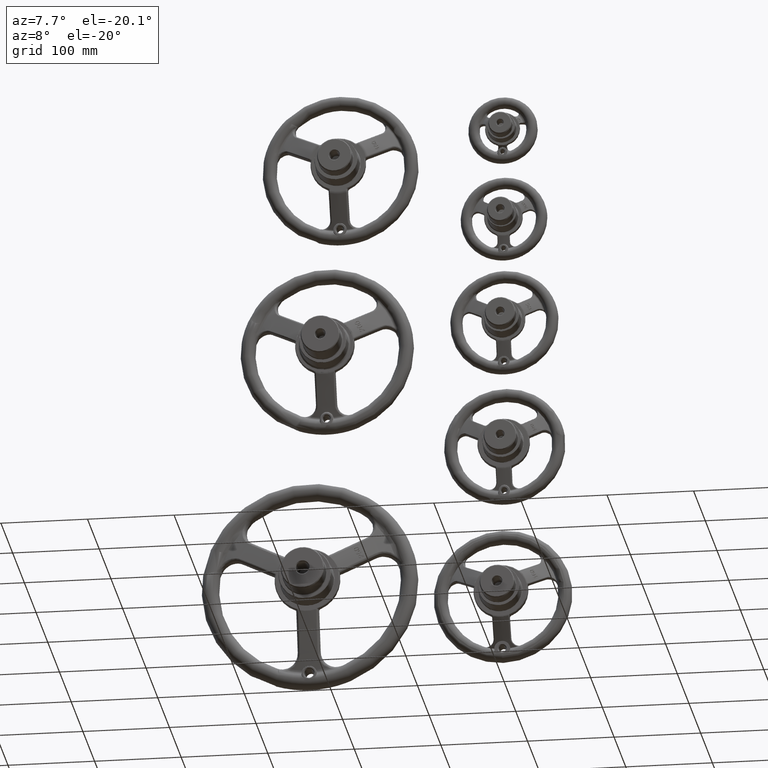
[diagram: clean part render]
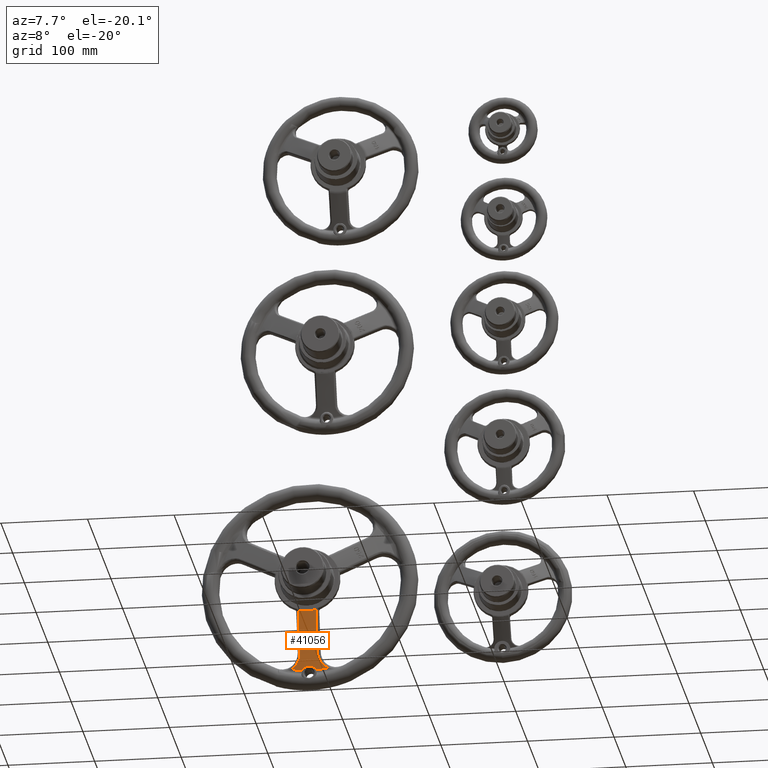
[diagram: same view with one face highlighted and labeled with its STEP entity id]
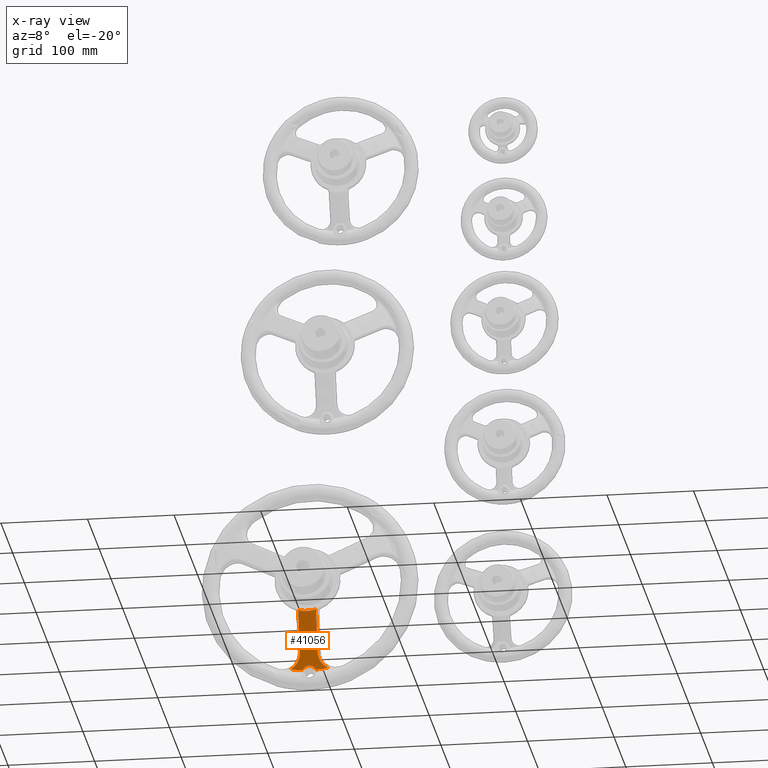
[diagram: x-ray of the same camera — body ghosted, the highlighted face saturated]
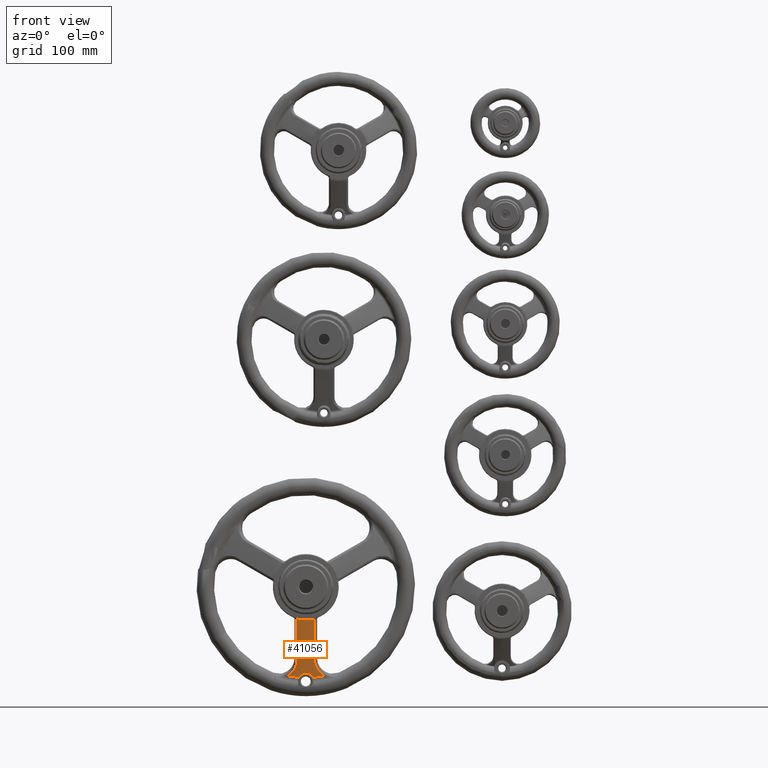
[diagram: same view with one face highlighted and labeled with its STEP entity id]
A machine part, auxiliary view. The second image highlights one B-rep face of the part: STEP entity #41056.
The next image is the same camera in x-ray: the body ghosted, the highlighted face saturated — about 0% of this face is hidden behind the body in this view.
A second angle (front view) of the same face is appended — the face is thin or edge-on in the first view.
In plain terms, the highlighted conical surface has half-angle 74.747 deg.
Its self-contained STEP definition (entity closure, byte-faithful):
#5355=CONICAL_SURFACE('',#44203,103.771854877396,1.30457974013529);
#7569=FACE_OUTER_BOUND('',#10660,.T.);
#10660=EDGE_LOOP('',(#37314,#37315,#37316,#37317,#37318,#37319,#37320,#37321));
#13751=B_SPLINE_CURVE_WITH_KNOTS('',3,(#172610,#172611,#172612,#172613,
#172614,#172615,#172616,#172617,#172618,#172619,#172620,#172621,#172622,
#172623,#172624,#172625,#172626,#172627,#172628,#172629,#172630,#172631,
#172632,#172633,#172634,#172635,#172636,#172637,#172638,#172639,#172640,
#172641,#172642,#172643,#172644,#172645,#172646,#172647,#172648,#172649,
#172650,#172651,#172652,#172653,#172654,#172655,#172656,#172657,#172658,
#172659,#172660,#172661,#172662,#172663,#172664,#172665,#172666,#172667,
#172668,#172669,#172670,#172671,#172672,#172673,#172674,#172675,#172676,
#172677,#172678,#172679,#172680,#172681,#172682,#172683,#172684,#172685,
#172686,#172687,#172688,#172689,#172690,#172691,#172692,#172693,#172694,
#172695,#172696,#172697,#172698,#172699,#172700,#172701,#172702,#172703,
#172704,#172705,#172706,#172707,#172708,#172709,#172710,#172711,#172712,
#172713,#172714,#172715,#172716,#172717,#172718,#172719,#172720,#172721,
#172722,#172723,#172724,#172725,#172726,#172727,#172728,#172729,#172730,
#172731,#172732,#172733,#172734,#172735,#172736),.UNSPECIFIED.,.F.,.F.,
(4,3,3,3,3,3,3,3,3,3,3,3,3,3,3,3,3,3,3,3,3,3,3,3,3,3,3,3,3,3,3,3,3,3,3,
3,3,3,3,3,3,3,4),(0.,0.0624999999999785,0.13284328700875,0.140624999999952,
0.142578124999951,0.143554687499951,0.144531249999951,0.148437499999952,
0.156249999999953,0.187499999999962,0.21874999999997,0.234374999999974,
0.242187499999976,0.246093749999977,0.248046874999978,0.249999999999979,
0.303834696674284,0.35937500000001,0.367187500000011,0.371093750000012,
0.373046875000013,0.374023437500012,0.375000000000011,0.468749999999983,
0.484374999999978,0.492187499999975,0.498295150706247,0.499999999999971,
0.593749999999935,0.609374999999929,0.617187499999926,0.621093749999924,
0.624999999999921,0.68718398001762,0.718749999999841,0.734374999999828,
0.742187499999821,0.746093749999818,0.748046874999816,0.749023437499816,
0.749999999999815,0.866471650403726,1.),.UNSPECIFIED.);
#13752=B_SPLINE_CURVE_WITH_KNOTS('',3,(#172802,#172803,#172804,#172805,
#172806,#172807,#172808,#172809,#172810,#172811,#172812,#172813,#172814,
#172815,#172816,#172817,#172818,#172819,#172820,#172821,#172822,#172823,
#172824,#172825,#172826,#172827,#172828,#172829,#172830,#172831,#172832,
#172833,#172834,#172835,#172836,#172837,#172838,#172839,#172840,#172841),
 .UNSPECIFIED.,.F.,.F.,(4,2,2,1,1,1,1,2,2,2,2,1,1,1,1,2,2,2,2,1,1,1,1,2,
2,4),(0.,0.0624999999999976,0.0937499999999966,0.109374999999996,0.117187499999996,
0.121093749999996,0.123046874999996,0.124511718749995,0.124999999999995,
0.187499999999979,0.218749999999971,0.234374999999968,0.242187499999966,
0.246093749999965,0.248046874999964,0.249755859374963,0.249999999999963,
0.374999999999925,0.437499999999906,0.468749999999897,0.484374999999892,
0.49218749999989,0.496093749999889,0.499755859374888,0.499999999999888,
1.),.UNSPECIFIED.);
#13753=B_SPLINE_CURVE_WITH_KNOTS('',3,(#172842,#172843,#172844,#172845,
#172846,#172847,#172848,#172849,#172850,#172851,#172852,#172853,#172854,
#172855,#172856,#172857,#172858,#172859,#172860,#172861,#172862,#172863,
#172864,#172865,#172866,#172867,#172868,#172869),.UNSPECIFIED.,.F.,.F.,
(4,2,2,2,2,2,2,2,2,2,2,2,2,4),(0.,0.125000000000001,0.187500000000001,0.218750000000001,
0.250000000000002,0.312500000000002,0.375000000000002,0.500000000000002,
0.562500000000002,0.625000000000002,0.687500000000002,0.750000000000002,
0.875000000000001,1.),.UNSPECIFIED.);
#13754=B_SPLINE_CURVE_WITH_KNOTS('',3,(#172871,#172872,#172873,#172874,
#172875,#172876,#172877,#172878,#172879,#172880,#172881,#172882,#172883,
#172884,#172885,#172886,#172887,#172888,#172889,#172890,#172891,#172892,
#172893,#172894,#172895,#172896,#172897,#172898,#172899,#172900,#172901,
#172902,#172903,#172904,#172905),.UNSPECIFIED.,.F.,.F.,(4,2,2,1,1,1,2,2,
2,2,1,1,1,2,2,2,2,1,2,2,4),(0.,0.12500000000001,0.187500000000015,0.218750000000017,
0.234375000000017,0.242187500000018,0.246093750000017,0.250000000000017,
0.374999999999985,0.43749999999997,0.468749999999962,0.484374999999959,
0.492187499999957,0.496093749999957,0.499999999999957,0.624999999999975,
0.687499999999983,0.718749999999987,0.734374999999988,0.749999999999989,
1.),.UNSPECIFIED.);
#13755=B_SPLINE_CURVE_WITH_KNOTS('',3,(#172906,#172907,#172908,#172909,
#172910,#172911,#172912,#172913,#172914,#172915,#172916,#172917,#172918,
#172919,#172920,#172921,#172922,#172923,#172924,#172925,#172926,#172927,
#172928,#172929,#172930,#172931,#172932,#172933,#172934,#172935,#172936,
#172937,#172938,#172939,#172940,#172941,#172942,#172943,#172944,#172945,
#172946,#172947,#172948,#172949,#172950,#172951,#172952,#172953,#172954,
#172955,#172956,#172957,#172958,#172959,#172960,#172961,#172962,#172963,
#172964,#172965,#172966,#172967,#172968,#172969,#172970,#172971,#172972,
#172973,#172974,#172975,#172976,#172977,#172978,#172979,#172980,#172981,
#172982,#172983,#172984,#172985,#172986,#172987),.UNSPECIFIED.,.F.,.F.,
(4,3,3,3,3,3,3,3,3,3,3,3,3,3,3,3,3,3,3,3,3,3,3,3,3,3,3,4),(0.,0.125000000000189,
0.187500000000284,0.218750000000331,0.234375000000355,0.242187500000367,
0.249023437500377,0.250000000000378,0.437500000000483,0.4687500000005,0.484375000000509,
0.492187500000513,0.499755859375518,0.501832300117688,0.68750000000035,
0.718750000000321,0.734375000000307,0.7421875000003,0.746093750000297,0.749755859375294,
0.750000000000293,0.843750000000205,0.85937500000019,0.867187500000183,
0.871093750000179,0.874511718750176,0.875000000000176,1.),.UNSPECIFIED.);
#15244=CIRCLE('',#44085,38.0547580858421);
#15284=CIRCLE('',#44149,103.771854877414);
#15289=CIRCLE('',#44157,103.77184931423);
#18909=VERTEX_POINT('',#163284);
#18910=VERTEX_POINT('',#163286);
#19006=VERTEX_POINT('',#168486);
#19007=VERTEX_POINT('',#168530);
#19008=VERTEX_POINT('',#168898);
#19009=VERTEX_POINT('',#168899);
#19182=VERTEX_POINT('',#172599);
#19183=VERTEX_POINT('',#172870);
#24940=EDGE_CURVE('',#18910,#18909,#15244,.T.);
#25083=EDGE_CURVE('',#19007,#19006,#15284,.T.);
#25091=EDGE_CURVE('',#19008,#19009,#15289,.T.);
#25310=EDGE_CURVE('',#19007,#19182,#13751,.T.);
#25312=EDGE_CURVE('',#18909,#19182,#13752,.T.);
#25313=EDGE_CURVE('',#19006,#19008,#13753,.T.);
#25314=EDGE_CURVE('',#19009,#19183,#13754,.T.);
#25315=EDGE_CURVE('',#19183,#18910,#13755,.T.);
#37314=ORIENTED_EDGE('',*,*,#25312,.T.);
#37315=ORIENTED_EDGE('',*,*,#25310,.F.);
#37316=ORIENTED_EDGE('',*,*,#25083,.T.);
#37317=ORIENTED_EDGE('',*,*,#25313,.T.);
#37318=ORIENTED_EDGE('',*,*,#25091,.T.);
#37319=ORIENTED_EDGE('',*,*,#25314,.T.);
#37320=ORIENTED_EDGE('',*,*,#25315,.T.);
#37321=ORIENTED_EDGE('',*,*,#24940,.T.);
#41056=ADVANCED_FACE('',(#7569),#5355,.T.);
#44085=AXIS2_PLACEMENT_3D('',#163287,#51017,#51018);
#44149=AXIS2_PLACEMENT_3D('',#168531,#51149,#51150);
#44157=AXIS2_PLACEMENT_3D('',#168900,#51165,#51166);
#44203=AXIS2_PLACEMENT_3D('',#172801,#51284,#51285);
#51017=DIRECTION('center_axis',(1.,0.,0.));
#51018=DIRECTION('ref_axis',(0.,0.,-1.));
#51149=DIRECTION('center_axis',(-1.,0.,0.));
#51150=DIRECTION('ref_axis',(0.,0.,1.));
#51165=DIRECTION('center_axis',(-1.,0.,0.));
#51166=DIRECTION('ref_axis',(0.,0.,1.));
#51284=DIRECTION('center_axis',(1.,0.,0.));
#51285=DIRECTION('ref_axis',(0.,0.,-1.));
#163284=CARTESIAN_POINT('',(-34.8943289392969,36.6590300349616,10.2117819964921));
#163286=CARTESIAN_POINT('',(-34.89432058401,36.6590229426901,-10.2117899974956));
#163287=CARTESIAN_POINT('Origin',(-34.8943201763959,0.,0.));
#168486=CARTESIAN_POINT('',(-16.9739847831707,103.474923866876,7.84457855002826));
#168530=CARTESIAN_POINT('',(-16.9739419911111,101.605770699527,21.0917857807437));
#168531=CARTESIAN_POINT('Origin',(-16.9739794070396,-9.0205620750794E-14,
-2.50233861409654E-13));
#168898=CARTESIAN_POINT('',(-16.973994800625,103.474924903722,-7.84457850489068));
#168899=CARTESIAN_POINT('',(-16.9739752877309,101.605776900905,-21.0917776316939));
#168900=CARTESIAN_POINT('Origin',(-16.9739809240657,2.4980018054066E-12,
-2.26815094483968E-13));
#172599=CARTESIAN_POINT('',(-22.2560785147894,83.7955746665729,10.0944882080748));
#172610=CARTESIAN_POINT('Ctrl Pts',(-16.9739419911111,101.605770699527,
21.0917857807437));
#172611=CARTESIAN_POINT('Ctrl Pts',(-17.0131705325879,101.50110879457,20.8880453261607));
#172612=CARTESIAN_POINT('Ctrl Pts',(-17.0705558123659,101.346832869511,
20.5937106554962));
#172613=CARTESIAN_POINT('Ctrl Pts',(-17.1487643403643,101.129682351792,
20.2169350297165));
#172614=CARTESIAN_POINT('Ctrl Pts',(-17.2367874592687,100.885281052719,
19.7928768540022));
#172615=CARTESIAN_POINT('Ctrl Pts',(-17.3512521168834,100.56106503464,19.2639413271574));
#172616=CARTESIAN_POINT('Ctrl Pts',(-17.4973790992269,100.129924744846,
18.6526312745264));
#172617=CARTESIAN_POINT('Ctrl Pts',(-17.5135443693645,100.082229930787,
18.5850052140949));
#172618=CARTESIAN_POINT('Ctrl Pts',(-17.5300975488311,100.033221462859,
18.5163854402435));
#172619=CARTESIAN_POINT('Ctrl Pts',(-17.5470468511697,99.9828575116007,
18.446811722086));
#172620=CARTESIAN_POINT('Ctrl Pts',(-17.5513009410041,99.9702167097088,
18.4293494784348));
#172621=CARTESIAN_POINT('Ctrl Pts',(-17.5555799854516,99.9574905152225,
18.4118271509945));
#172622=CARTESIAN_POINT('Ctrl Pts',(-17.5598841156294,99.944678260519,18.3942453896751));
#172623=CARTESIAN_POINT('Ctrl Pts',(-17.5620361807182,99.9382721331672,
18.3854545090154));
#172624=CARTESIAN_POINT('Ctrl Pts',(-17.5630504001566,99.9352512919648,
18.3813182920534));
#172625=CARTESIAN_POINT('Ctrl Pts',(-17.5642093678394,99.9317992904872,
18.3765918899931));
#172626=CARTESIAN_POINT('Ctrl Pts',(-17.5653683355223,99.9283472890096,
18.3718654879329));
#172627=CARTESIAN_POINT('Ctrl Pts',(-17.5665301877634,99.9248858651622,
18.3671304787412));
#172628=CARTESIAN_POINT('Ctrl Pts',(-17.5676949292064,99.9214149951752,
18.3623868839065));
#172629=CARTESIAN_POINT('Ctrl Pts',(-17.5723538949783,99.9075315152276,
18.3434125045676));
#172630=CARTESIAN_POINT('Ctrl Pts',(-17.577059087956,99.8934968970407,18.3243007549378));
#172631=CARTESIAN_POINT('Ctrl Pts',(-17.5818108120182,99.8793095791492,
18.3050530972629));
#172632=CARTESIAN_POINT('Ctrl Pts',(-17.5913142601425,99.8509349433662,
18.2665577819131));
#172633=CARTESIAN_POINT('Ctrl Pts',(-17.6010038323533,99.821949508697,18.2275188343716));
#172634=CARTESIAN_POINT('Ctrl Pts',(-17.610881901645,99.7923412125826,18.1879468632724));
#172635=CARTESIAN_POINT('Ctrl Pts',(-17.6503941788118,99.6739080281252,
18.0296589788756));
#172636=CARTESIAN_POINT('Ctrl Pts',(-17.6929222478888,99.5455090172499,
17.862842709649));
#172637=CARTESIAN_POINT('Ctrl Pts',(-17.7386292802459,99.4063092856048,
17.6883154389759));
#172638=CARTESIAN_POINT('Ctrl Pts',(-17.7843363126029,99.2671095539598,
17.5137881683028));
#172639=CARTESIAN_POINT('Ctrl Pts',(-17.8332225913073,99.1171078581781,
17.3315490798562));
#172640=CARTESIAN_POINT('Ctrl Pts',(-17.8854599640864,98.95542290344,17.1425537139216));
#172641=CARTESIAN_POINT('Ctrl Pts',(-17.911578650476,98.8745804260709,17.0480560309543));
#172642=CARTESIAN_POINT('Ctrl Pts',(-17.9385352193939,98.7908165278036,
16.951871504142));
#172643=CARTESIAN_POINT('Ctrl Pts',(-17.9663515971866,98.7040182641503,
16.8541335838639));
#172644=CARTESIAN_POINT('Ctrl Pts',(-17.9802597860829,98.6606191323236,
16.8052646237249));
#172645=CARTESIAN_POINT('Ctrl Pts',(-17.9943829308923,98.6164614101427,
16.7560073153892));
#172646=CARTESIAN_POINT('Ctrl Pts',(-18.0087237818452,98.5715308505813,
16.7063794370107));
#172647=CARTESIAN_POINT('Ctrl Pts',(-18.0158942073217,98.5490655708006,
16.6815654978214));
#172648=CARTESIAN_POINT('Ctrl Pts',(-18.0231190595924,98.5264070817441,
16.6566589161334));
#172649=CARTESIAN_POINT('Ctrl Pts',(-18.0303986824465,98.5035536031395,
16.63166194727));
#172650=CARTESIAN_POINT('Ctrl Pts',(-18.0340384938735,98.4921268638372,
16.6191634628383));
#172651=CARTESIAN_POINT('Ctrl Pts',(-18.0376919979627,98.4806513771523,
16.6066423816135));
#172652=CARTESIAN_POINT('Ctrl Pts',(-18.0413592376882,98.4691269202678,
16.5940989895198));
#172653=CARTESIAN_POINT('Ctrl Pts',(-18.0450264774137,98.4576024633834,
16.5815555974261));
#172654=CARTESIAN_POINT('Ctrl Pts',(-18.0482627153754,98.4474280507191,
16.570505078235));
#172655=CARTESIAN_POINT('Ctrl Pts',(-18.0524022067747,98.4344064161578,
16.5564021677853));
#172656=CARTESIAN_POINT('Ctrl Pts',(-18.1665005178748,98.0754863537899,
16.1676785037686));
#172657=CARTESIAN_POINT('Ctrl Pts',(-18.2720031805753,97.7380859004443,
15.831967265848));
#172658=CARTESIAN_POINT('Ctrl Pts',(-18.3672677708557,97.4305755889102,
15.5420550871586));
#172659=CARTESIAN_POINT('Ctrl Pts',(-18.4655505618294,97.1133226454838,
15.2429578257837));
#172660=CARTESIAN_POINT('Ctrl Pts',(-18.5529433542914,96.8278482150683,
14.9925723841476));
#172661=CARTESIAN_POINT('Ctrl Pts',(-18.6282192631973,96.580477021331,14.784245182525));
#172662=CARTESIAN_POINT('Ctrl Pts',(-18.6388078448779,96.5456808942781,
14.7549411246568));
#172663=CARTESIAN_POINT('Ctrl Pts',(-18.6491574584638,96.5116347444879,
14.7264717216496));
#172664=CARTESIAN_POINT('Ctrl Pts',(-18.6592654315888,96.4783524146825,
14.6988209877451));
#172665=CARTESIAN_POINT('Ctrl Pts',(-18.6643194181512,96.4617112497798,
14.6849956207929));
#172666=CARTESIAN_POINT('Ctrl Pts',(-18.6693129940727,96.4452610397315,
14.6713749210948));
#172667=CARTESIAN_POINT('Ctrl Pts',(-18.6742458448636,96.4290034186252,
14.6579569664354));
#172668=CARTESIAN_POINT('Ctrl Pts',(-18.676712270259,96.420874608072,14.6512479891056));
#172669=CARTESIAN_POINT('Ctrl Pts',(-18.6791635143405,96.4127939447459,
14.6445896980343));
#172670=CARTESIAN_POINT('Ctrl Pts',(-18.6815995381984,96.4047616303482,
14.6379818551512));
#172671=CARTESIAN_POINT('Ctrl Pts',(-18.6828175501273,96.4007454731494,
14.6346779337096));
#172672=CARTESIAN_POINT('Ctrl Pts',(-18.6840317569985,96.3967414031821,
14.631386624315));
#172673=CARTESIAN_POINT('Ctrl Pts',(-18.6852421540153,96.3927494453228,
14.6281078974828));
#172674=CARTESIAN_POINT('Ctrl Pts',(-18.6864525510322,96.3887574874636,
14.6248291706505));
#172675=CARTESIAN_POINT('Ctrl Pts',(-18.6873728817243,96.3857219452455,
14.62233737183));
#172676=CARTESIAN_POINT('Ctrl Pts',(-18.6888619107225,96.3808099328441,
14.6183094352717));
#172677=CARTESIAN_POINT('Ctrl Pts',(-18.8318086945483,95.9092567423087,
14.2316275256801));
#172678=CARTESIAN_POINT('Ctrl Pts',(-18.9925587089385,95.3727281046716,
13.8275068415792));
#172679=CARTESIAN_POINT('Ctrl Pts',(-19.1724772110843,94.7637107636796,
13.4224339785856));
#172680=CARTESIAN_POINT('Ctrl Pts',(-19.2024636281086,94.6622078735143,
13.3549218347533));
#172681=CARTESIAN_POINT('Ctrl Pts',(-19.2329819452533,94.5586937417528,
13.2873936928597));
#172682=CARTESIAN_POINT('Ctrl Pts',(-19.2640376909171,94.4531369914365,
13.2199388282358));
#172683=CARTESIAN_POINT('Ctrl Pts',(-19.2795655637489,94.4003586162783,
13.1862113959239));
#172684=CARTESIAN_POINT('Ctrl Pts',(-19.2952277967312,94.3470695872973,
13.1525022830432));
#172685=CARTESIAN_POINT('Ctrl Pts',(-19.3110250404541,94.2932661424516,
13.1188231116441));
#172686=CARTESIAN_POINT('Ctrl Pts',(-19.3233749984422,94.251203723519,13.0924934329264));
#172687=CARTESIAN_POINT('Ctrl Pts',(-19.3355485747463,94.2097097807388,
13.0667275468454));
#172688=CARTESIAN_POINT('Ctrl Pts',(-19.3481531837515,94.1667124261269,
13.040250723983));
#172689=CARTESIAN_POINT('Ctrl Pts',(-19.3516715510901,94.1547104284412,
13.0328601584567));
#172690=CARTESIAN_POINT('Ctrl Pts',(-19.3552235421038,94.1425910805604,
13.0254145628326));
#172691=CARTESIAN_POINT('Ctrl Pts',(-19.3588224599039,94.1303088232114,
13.0178870759142));
#172692=CARTESIAN_POINT('Ctrl Pts',(-19.5567276618489,93.4549050613056,
12.6039490808105));
#172693=CARTESIAN_POINT('Ctrl Pts',(-19.7423542437733,92.8131392542416,
12.2647885377074));
#172694=CARTESIAN_POINT('Ctrl Pts',(-19.9131280159776,92.2181286211407,
11.983735194454));
#172695=CARTESIAN_POINT('Ctrl Pts',(-19.941590311345,92.1189601822906,11.9368929705784));
#172696=CARTESIAN_POINT('Ctrl Pts',(-19.9696425866894,92.0210787279279,
11.8916681189429));
#172697=CARTESIAN_POINT('Ctrl Pts',(-19.9972758398749,91.9245314725752,
11.8479877995245));
#172698=CARTESIAN_POINT('Ctrl Pts',(-20.0110924664677,91.8762578448988,
11.8261476398153));
#172699=CARTESIAN_POINT('Ctrl Pts',(-20.0248043352732,91.828317766367,11.8046936130826));
#172700=CARTESIAN_POINT('Ctrl Pts',(-20.0384104053394,91.7807167533889,
11.7836167812048));
#172701=CARTESIAN_POINT('Ctrl Pts',(-20.0452134403725,91.7569162468999,
11.7730783652659));
#172702=CARTESIAN_POINT('Ctrl Pts',(-20.0519900255862,91.733200506763,11.7626342480361));
#172703=CARTESIAN_POINT('Ctrl Pts',(-20.0587400327301,91.7095702117221,
11.7522833179157));
#172704=CARTESIAN_POINT('Ctrl Pts',(-20.0654900398741,91.6859399166813,
11.7419323877953));
#172705=CARTESIAN_POINT('Ctrl Pts',(-20.0727507227216,91.6605130582395,
11.7308590888395));
#172706=CARTESIAN_POINT('Ctrl Pts',(-20.078910192766,91.6389363342282,11.7215089802846));
#172707=CARTESIAN_POINT('Ctrl Pts',(-20.1769634054779,91.2954543310869,
11.572663677618));
#172708=CARTESIAN_POINT('Ctrl Pts',(-20.2860148526729,90.9118536434871,
11.4180580587797));
#172709=CARTESIAN_POINT('Ctrl Pts',(-20.4063275144458,90.4863413275579,
11.2646985855275));
#172710=CARTESIAN_POINT('Ctrl Pts',(-20.4674009916429,90.2703414789879,
11.1868497859531));
#172711=CARTESIAN_POINT('Ctrl Pts',(-20.5313752866429,90.0435453949002,
11.1093485030434));
#172712=CARTESIAN_POINT('Ctrl Pts',(-20.5982676905457,89.8057599016251,
11.0332545392025));
#172713=CARTESIAN_POINT('Ctrl Pts',(-20.6313790492653,89.6880574375667,
10.9955884607522));
#172714=CARTESIAN_POINT('Ctrl Pts',(-20.6652052162664,89.5676629137705,
10.9582688306343));
#172715=CARTESIAN_POINT('Ctrl Pts',(-20.699747052859,89.4445567741227,10.9214339845804));
#172716=CARTESIAN_POINT('Ctrl Pts',(-20.7170179711553,89.3830037042988,
10.9030165615535));
#172717=CARTESIAN_POINT('Ctrl Pts',(-20.7344678083294,89.3207727309125,
10.8847203345919));
#172718=CARTESIAN_POINT('Ctrl Pts',(-20.7520965659359,89.2578617477625,
10.8665633369554));
#172719=CARTESIAN_POINT('Ctrl Pts',(-20.7609109447391,89.2264062561875,
10.8574848381371));
#172720=CARTESIAN_POINT('Ctrl Pts',(-20.7697700537542,89.1947807621997,
10.8484411466536));
#172721=CARTESIAN_POINT('Ctrl Pts',(-20.7786738898927,89.1629850145599,
10.8394345380266));
#172722=CARTESIAN_POINT('Ctrl Pts',(-20.7831258079619,89.14708714074,10.8349312337131));
#172723=CARTESIAN_POINT('Ctrl Pts',(-20.7875889078188,89.1311467035089,
10.830437200114));
#172724=CARTESIAN_POINT('Ctrl Pts',(-20.7920631886987,89.1151636727119,
10.8259527242097));
#172725=CARTESIAN_POINT('Ctrl Pts',(-20.7943003291387,89.1071721573135,
10.8237104862576));
#172726=CARTESIAN_POINT('Ctrl Pts',(-20.7965402648348,89.0991699935236,
10.8214706377291));
#172727=CARTESIAN_POINT('Ctrl Pts',(-20.7987829956658,89.0911571776585,
10.8192332146645));
#172728=CARTESIAN_POINT('Ctrl Pts',(-20.8010257264967,89.0831443617934,
10.8169957916));
#172729=CARTESIAN_POINT('Ctrl Pts',(-20.803573700051,89.0740401312043,10.8144604698107));
#172730=CARTESIAN_POINT('Ctrl Pts',(-20.8055195734343,89.06708677018,10.812528257953));
#172731=CARTESIAN_POINT('Ctrl Pts',(-21.0375979958919,88.2377804693954,
10.5820792042645));
#172732=CARTESIAN_POINT('Ctrl Pts',(-21.2677161457909,87.408313299876,10.4097745380646));
#172733=CARTESIAN_POINT('Ctrl Pts',(-21.4941987315443,86.5858687399608,
10.2920046502568));
#172734=CARTESIAN_POINT('Ctrl Pts',(-21.7538485758031,85.6429812275141,
10.1569879427869));
#172735=CARTESIAN_POINT('Ctrl Pts',(-22.0086990263371,84.7093886521918,
10.0936197151564));
#172736=CARTESIAN_POINT('Ctrl Pts',(-22.2560760794949,83.7955740072436,
10.0944881288239));
#172801=CARTESIAN_POINT('Origin',(-16.9739794070192,0.,0.));
#172802=CARTESIAN_POINT('Ctrl Pts',(-34.8943289056064,36.6590300261499,
10.2117819940404));
#172803=CARTESIAN_POINT('Ctrl Pts',(-34.5863667840086,37.8331245971981,
10.2053838893543));
#172804=CARTESIAN_POINT('Ctrl Pts',(-34.2622457499935,39.0644252712386,
10.1994056338617));
#172805=CARTESIAN_POINT('Ctrl Pts',(-33.7518116534054,40.9973165902493,
10.1905405037477));
#172806=CARTESIAN_POINT('Ctrl Pts',(-33.5776248636151,41.6559351161384,
10.187614152418));
#172807=CARTESIAN_POINT('Ctrl Pts',(-33.3102815425384,42.665347021982,10.183307192585));
#172808=CARTESIAN_POINT('Ctrl Pts',(-33.1750940979021,43.1754238732611,
10.181175456577));
#172809=CARTESIAN_POINT('Ctrl Pts',(-33.014722790322,43.7799117932325,10.1787467929787));
#172810=CARTESIAN_POINT('Ctrl Pts',(-32.9338739809891,44.0845051353786,
10.1775504619891));
#172811=CARTESIAN_POINT('Ctrl Pts',(-32.8903844878975,44.2483094125306,
10.1769148748125));
#172812=CARTESIAN_POINT('Ctrl Pts',(-32.8700410360298,44.3249227065873,
10.1766197806077));
#172813=CARTESIAN_POINT('Ctrl Pts',(-32.8584043643278,44.3687436815651,
10.1764515389429));
#172814=CARTESIAN_POINT('Ctrl Pts',(-32.8550855729175,44.3812411889711,
10.1764036155096));
#172815=CARTESIAN_POINT('Ctrl Pts',(-32.5322624335264,45.5968684979208,
10.1717465714716));
#172816=CARTESIAN_POINT('Ctrl Pts',(-32.1977765156283,46.8537668908016,
10.1673829884946));
#172817=CARTESIAN_POINT('Ctrl Pts',(-31.6747997135861,48.8152153947495,
10.1609231038831));
#172818=CARTESIAN_POINT('Ctrl Pts',(-31.4969327920395,49.4817141821176,
10.1587904439995));
#172819=CARTESIAN_POINT('Ctrl Pts',(-31.2248204284209,50.5004870154637,
10.1556424924393));
#172820=CARTESIAN_POINT('Ctrl Pts',(-31.0874362512869,51.0146295349156,
10.1540818781767));
#172821=CARTESIAN_POINT('Ctrl Pts',(-30.924830719479,51.6227852299622,10.1522953033763));
#172822=CARTESIAN_POINT('Ctrl Pts',(-30.8429469556205,51.9289436746338,
10.1514123716837));
#172823=CARTESIAN_POINT('Ctrl Pts',(-30.7974576315506,52.0990001081281,
10.1509267388002));
#172824=CARTESIAN_POINT('Ctrl Pts',(-30.7753980356498,52.1814596299396,
10.1506927450552));
#172825=CARTESIAN_POINT('Ctrl Pts',(-30.7636208137119,52.2254813852592,
10.1505682042629));
#172826=CARTESIAN_POINT('Ctrl Pts',(-30.7616919944231,52.2326910110891,
10.1505478186595));
#172827=CARTESIAN_POINT('Ctrl Pts',(-30.2404149288167,54.1811342565704,
10.1450403239777));
#172828=CARTESIAN_POINT('Ctrl Pts',(-29.6873814789306,56.244005130852,10.1402064881966));
#172829=CARTESIAN_POINT('Ctrl Pts',(-28.8086725257359,59.5158009550869,
10.1327923105853));
#172830=CARTESIAN_POINT('Ctrl Pts',(-28.50757641161,60.635978337426,10.1303170931928));
#172831=CARTESIAN_POINT('Ctrl Pts',(-28.0436425458297,62.3606109624866,
10.126665128522));
#172832=CARTESIAN_POINT('Ctrl Pts',(-27.8086031892918,63.2340187383531,
10.1248565676493));
#172833=CARTESIAN_POINT('Ctrl Pts',(-27.5290138652804,64.2724025610612,
10.1228149608588));
#172834=CARTESIAN_POINT('Ctrl Pts',(-27.3878750179288,64.7964461438118,
10.1218177308038));
#172835=CARTESIAN_POINT('Ctrl Pts',(-27.3081063641649,65.0925851402267,
10.1212643844122));
#172836=CARTESIAN_POINT('Ctrl Pts',(-27.2687349802707,65.2387379401343,
10.1209946785017));
#172837=CARTESIAN_POINT('Ctrl Pts',(-27.2483842618655,65.3142799312355,
10.1208561576349));
#172838=CARTESIAN_POINT('Ctrl Pts',(-27.2465508807918,65.3210854287675,
10.1208436853581));
#172839=CARTESIAN_POINT('Ctrl Pts',(-25.7900524683165,70.7275869785589,
10.1109382403254));
#172840=CARTESIAN_POINT('Ctrl Pts',(-24.1268026806992,76.8848041414278,
10.1022887367294));
#172841=CARTESIAN_POINT('Ctrl Pts',(-22.2560833853785,83.7955759852316,
10.0944883665767));
#172842=CARTESIAN_POINT('Ctrl Pts',(-16.9739945851106,103.47492511152,7.84457864434647));
#172843=CARTESIAN_POINT('Ctrl Pts',(-17.1781415693827,102.754603715766,
7.44193904902016));
#172844=CARTESIAN_POINT('Ctrl Pts',(-17.3633243375795,102.108897861329,
6.95427792934102));
#172845=CARTESIAN_POINT('Ctrl Pts',(-17.6122960663922,101.247750705941,
6.1006767150951));
#172846=CARTESIAN_POINT('Ctrl Pts',(-17.6891909166063,100.982997650563,
5.80122660755122));
#172847=CARTESIAN_POINT('Ctrl Pts',(-17.795389602842,100.618662706749,5.32950836728133));
#172848=CARTESIAN_POINT('Ctrl Pts',(-17.8292652334064,100.502682772689,
5.16850953179122));
#172849=CARTESIAN_POINT('Ctrl Pts',(-17.8939686315066,100.281535719068,
4.83893821436522));
#172850=CARTESIAN_POINT('Ctrl Pts',(-17.9249663115187,100.175789808455,
4.66936612599577));
#172851=CARTESIAN_POINT('Ctrl Pts',(-18.0123680821552,99.8780586234283,
4.15517835430147));
#172852=CARTESIAN_POINT('Ctrl Pts',(-18.0636743606047,99.7038822986001,
3.80303184221342));
#172853=CARTESIAN_POINT('Ctrl Pts',(-18.1523637802202,99.4034776725538,
3.0788764990985));
#172854=CARTESIAN_POINT('Ctrl Pts',(-18.1898819108801,99.2767943552507,
2.70516975199815));
#172855=CARTESIAN_POINT('Ctrl Pts',(-18.2807416599728,98.970285974852,1.56238803326323));
#172856=CARTESIAN_POINT('Ctrl Pts',(-18.3110244692505,98.8686763130035,
0.789401763328793));
#172857=CARTESIAN_POINT('Ctrl Pts',(-18.311013169764,98.8687102941309,-0.39563398777891));
#172858=CARTESIAN_POINT('Ctrl Pts',(-18.3034348397173,98.8941338096515,
-0.786222724599316));
#172859=CARTESIAN_POINT('Ctrl Pts',(-18.2731290525213,98.9960971725712,
-1.56045354409075));
#172860=CARTESIAN_POINT('Ctrl Pts',(-18.2504993307975,99.072307156289,-1.94286654912473));
#172861=CARTESIAN_POINT('Ctrl Pts',(-18.1896998185457,99.2774046401268,
-2.70747897361054));
#172862=CARTESIAN_POINT('Ctrl Pts',(-18.1523212794307,99.4036199053157,
-3.07931599785695));
#172863=CARTESIAN_POINT('Ctrl Pts',(-18.0636066352224,99.704115630343,-3.80342831256795));
#172864=CARTESIAN_POINT('Ctrl Pts',(-18.0125142719669,99.8775654462769,
-4.15426972563491));
#172865=CARTESIAN_POINT('Ctrl Pts',(-17.8368383822064,100.475990602139,
-5.18779827674415));
#172866=CARTESIAN_POINT('Ctrl Pts',(-17.6952794800697,100.960728372371,
-5.81614607335022));
#172867=CARTESIAN_POINT('Ctrl Pts',(-17.3632698946379,102.109082371558,
-6.95451552260795));
#172868=CARTESIAN_POINT('Ctrl Pts',(-17.17817197353,102.754496586433,-7.4418772050272));
#172869=CARTESIAN_POINT('Ctrl Pts',(-16.973994800625,103.474924903722,-7.84457850489068));
#172870=CARTESIAN_POINT('',(-22.2560813308478,83.7955815100288,-10.0945090243406));
#172871=CARTESIAN_POINT('Ctrl Pts',(-16.9739613342367,101.605773814686,
-21.0917765295673));
#172872=CARTESIAN_POINT('Ctrl Pts',(-17.1344900271681,101.177623914277,
-20.2583224834247));
#172873=CARTESIAN_POINT('Ctrl Pts',(-17.3047104164017,100.697402396007,
-19.4628044937342));
#172874=CARTESIAN_POINT('Ctrl Pts',(-17.5746064809183,99.9025128493838,
-18.3276994626468));
#172875=CARTESIAN_POINT('Ctrl Pts',(-17.6669994158682,99.6251208300115,
-17.9590174428066));
#172876=CARTESIAN_POINT('Ctrl Pts',(-17.8092301884596,99.1908068573132,
-17.4206023614332));
#172877=CARTESIAN_POINT('Ctrl Pts',(-17.881255917297,98.9690931050114,-17.1550459877434));
#172878=CARTESIAN_POINT('Ctrl Pts',(-17.9668790337218,98.7025409644703,
-16.8516283318701));
#172879=CARTESIAN_POINT('Ctrl Pts',(-18.0100888667962,98.5673041665196,
-16.7015194690083));
#172880=CARTESIAN_POINT('Ctrl Pts',(-18.0286927112985,98.5089265338114,
-16.6375299808293));
#172881=CARTESIAN_POINT('Ctrl Pts',(-18.0411142397697,98.4699151270166,
-16.5949465198017));
#172882=CARTESIAN_POINT('Ctrl Pts',(-18.0470886378728,98.4511363675598,
-16.5745301339772));
#172883=CARTESIAN_POINT('Ctrl Pts',(-18.2607827307617,97.7788583446074,
-15.8467884632956));
#172884=CARTESIAN_POINT('Ctrl Pts',(-18.4735492527016,97.091207703352,-15.1999925094897));
#172885=CARTESIAN_POINT('Ctrl Pts',(-18.8010210470464,96.0107430791467,
-14.3150789890327));
#172886=CARTESIAN_POINT('Ctrl Pts',(-18.9115653137339,95.6424144554294,
-14.0343125143488));
#172887=CARTESIAN_POINT('Ctrl Pts',(-19.0794622166238,95.0781598571148,
-13.6340120026627));
#172888=CARTESIAN_POINT('Ctrl Pts',(-19.1639307937835,94.7930913229629,
-13.4390732836509));
#172889=CARTESIAN_POINT('Ctrl Pts',(-19.2633876871371,94.4554647866499,
-13.2206568911929));
#172890=CARTESIAN_POINT('Ctrl Pts',(-19.3133436888141,94.2854018155253,
-13.1136876349032));
#172891=CARTESIAN_POINT('Ctrl Pts',(-19.3348021656043,94.2122511564271,
-13.0683219180208));
#172892=CARTESIAN_POINT('Ctrl Pts',(-19.3491186527501,94.1634249606299,
-13.0381842138228));
#172893=CARTESIAN_POINT('Ctrl Pts',(-19.3559679520913,94.1400554137638,
-13.0238245314314));
#172894=CARTESIAN_POINT('Ctrl Pts',(-19.6029215292888,93.2970633399875,
-12.5083992862593));
#172895=CARTESIAN_POINT('Ctrl Pts',(-19.8433752639777,92.464110127052,-12.0780485803344));
#172896=CARTESIAN_POINT('Ctrl Pts',(-20.205531264848,91.1952999106007,-11.5297935764372));
#172897=CARTESIAN_POINT('Ctrl Pts',(-20.326495831611,90.7691195555764,-11.3632499936647));
#172898=CARTESIAN_POINT('Ctrl Pts',(-20.5083115314647,90.1253520368177,
-11.1368517755184));
#172899=CARTESIAN_POINT('Ctrl Pts',(-20.5993115938189,89.802342862491,-11.0295066562397));
#172900=CARTESIAN_POINT('Ctrl Pts',(-20.690449974814,89.4777043525293,-10.9307721163414));
#172901=CARTESIAN_POINT('Ctrl Pts',(-20.7512396329532,89.2609224467145,
-10.8668434465534));
#172902=CARTESIAN_POINT('Ctrl Pts',(-20.7810869807122,89.1543650961338,
-10.8363827465854));
#172903=CARTESIAN_POINT('Ctrl Pts',(-21.3078900628071,87.2715131295173,
-10.315570907836));
#172904=CARTESIAN_POINT('Ctrl Pts',(-21.7892277712546,85.5202067088981,
-10.0929874872449));
#172905=CARTESIAN_POINT('Ctrl Pts',(-22.2560813515602,83.795581515659,-10.0945090248282));
#172906=CARTESIAN_POINT('Ctrl Pts',(-22.2560885226498,83.7955834570782,
-10.0945092587056));
#172907=CARTESIAN_POINT('Ctrl Pts',(-22.7614069030929,81.9288389433392,
-10.0966172234247));
#172908=CARTESIAN_POINT('Ctrl Pts',(-23.2506582665107,80.1205210477892,
-10.0988067203595));
#172909=CARTESIAN_POINT('Ctrl Pts',(-23.7238426129183,78.3706311999127,
-10.1010139511096));
#172910=CARTESIAN_POINT('Ctrl Pts',(-23.9604347861221,77.4956862759744,
-10.1021175664847));
#172911=CARTESIAN_POINT('Ctrl Pts',(-24.1930102051136,76.6353481912283,
-10.1032287217252));
#172912=CARTESIAN_POINT('Ctrl Pts',(-24.4215688680814,75.7896159000637,
-10.1043581815598));
#172913=CARTESIAN_POINT('Ctrl Pts',(-24.5358481995653,75.3667497544813,
-10.1049229114771));
#172914=CARTESIAN_POINT('Ctrl Pts',(-24.6491233450306,74.9475350581018,
-10.1054922176511));
#172915=CARTESIAN_POINT('Ctrl Pts',(-24.7613943007374,74.5319715712508,
-10.1060688417784));
#172916=CARTESIAN_POINT('Ctrl Pts',(-24.8175297785908,74.3241898278253,
-10.106357153842));
#172917=CARTESIAN_POINT('Ctrl Pts',(-24.8734142091545,74.1173208868225,
-10.1066472953992));
#172918=CARTESIAN_POINT('Ctrl Pts',(-24.9290475925093,73.9113647145663,
-10.106939647897));
#172919=CARTESIAN_POINT('Ctrl Pts',(-24.9568642841867,73.8083866284381,
-10.107085824146));
#172920=CARTESIAN_POINT('Ctrl Pts',(-24.9846182140712,73.7056367344992,
-10.1072325531304));
#172921=CARTESIAN_POINT('Ctrl Pts',(-25.0123093821667,73.6031150281363,
-10.1073798872602));
#172922=CARTESIAN_POINT('Ctrl Pts',(-25.0365391542502,73.5134085350689,
-10.1075088046237));
#172923=CARTESIAN_POINT('Ctrl Pts',(-25.0607208743394,73.4238767481145,
-10.1076381853016));
#172924=CARTESIAN_POINT('Ctrl Pts',(-25.084854542439,73.334519664036,-10.1077680660628));
#172925=CARTESIAN_POINT('Ctrl Pts',(-25.0883022093103,73.3217543663105,
-10.1077866204573));
#172926=CARTESIAN_POINT('Ctrl Pts',(-25.0911682131998,73.3111426847838,
-10.1078020547614));
#172927=CARTESIAN_POINT('Ctrl Pts',(-25.0951946010941,73.2962344669402,
-10.1078237600168));
#172928=CARTESIAN_POINT('Ctrl Pts',(-25.8682610768016,70.4338566409783,
-10.11199116906));
#172929=CARTESIAN_POINT('Ctrl Pts',(-26.5991767389168,67.7242539997318,
-10.1165587323791));
#172930=CARTESIAN_POINT('Ctrl Pts',(-27.2879415874398,65.1674302692566,
-10.1211827618286));
#172931=CARTESIAN_POINT('Ctrl Pts',(-27.4027357288603,64.7412929808441,
-10.1219534334036));
#172932=CARTESIAN_POINT('Ctrl Pts',(-27.516359014351,64.3193992468291,-10.1227298904314));
#172933=CARTESIAN_POINT('Ctrl Pts',(-27.6288114436942,63.9017486815124,
-10.1235156111519));
#172934=CARTESIAN_POINT('Ctrl Pts',(-27.6850376583658,63.692923398854,-10.1239084715121));
#172935=CARTESIAN_POINT('Ctrl Pts',(-27.7409711593669,63.4851589084689,
-10.1243036478112));
#172936=CARTESIAN_POINT('Ctrl Pts',(-27.7966119462361,63.278455146235,-10.1247017370794));
#172937=CARTESIAN_POINT('Ctrl Pts',(-27.8244323396707,63.175103265118,-10.1249007817136));
#172938=CARTESIAN_POINT('Ctrl Pts',(-27.8521795545922,63.0720165660442,
-10.1251005545909));
#172939=CARTESIAN_POINT('Ctrl Pts',(-27.8798535910091,62.9691950405064,
-10.1253011348437));
#172940=CARTESIAN_POINT('Ctrl Pts',(-27.906662813788,62.8695866876416,-10.1254954469637));
#172941=CARTESIAN_POINT('Ctrl Pts',(-27.9334033602561,62.7702271939255,
-10.1256905167867));
#172942=CARTESIAN_POINT('Ctrl Pts',(-27.9600752304293,62.6711165511898,
-10.1258864205018));
#172943=CARTESIAN_POINT('Ctrl Pts',(-27.9673928742082,62.6439247429838,
-10.1259401682739));
#172944=CARTESIAN_POINT('Ctrl Pts',(-27.9792886482098,62.5997201494484,
-10.1260277493211));
#172945=CARTESIAN_POINT('Ctrl Pts',(-27.9893739719052,62.562242072736,-10.1261023115785));
#172946=CARTESIAN_POINT('Ctrl Pts',(-28.8911665514238,59.2110901915897,
-10.1327693945981));
#172947=CARTESIAN_POINT('Ctrl Pts',(-29.7271521632884,56.0971514154824,
-10.1404357547867));
#172948=CARTESIAN_POINT('Ctrl Pts',(-30.497330807499,53.2204387973463,-10.1480041134363));
#172949=CARTESIAN_POINT('Ctrl Pts',(-30.6269606927551,52.7362551220302,
-10.1492779548635));
#172950=CARTESIAN_POINT('Ctrl Pts',(-30.7547263492531,52.2587904563201,
-10.1505640954343));
#172951=CARTESIAN_POINT('Ctrl Pts',(-30.8806277760916,51.7880430436843,
-10.151875626553));
#172952=CARTESIAN_POINT('Ctrl Pts',(-30.9435784895109,51.5526693373665,
-10.1525313921124));
#172953=CARTESIAN_POINT('Ctrl Pts',(-31.0060631470014,51.3189749447149,
-10.153193505387));
#172954=CARTESIAN_POINT('Ctrl Pts',(-31.0680817467033,51.0869595690307,
-10.1538641928614));
#172955=CARTESIAN_POINT('Ctrl Pts',(-31.0990910465543,50.9709518811887,
-10.1541995365987));
#172956=CARTESIAN_POINT('Ctrl Pts',(-31.1299838320317,50.8553639476081,
-10.1545370238897));
#172957=CARTESIAN_POINT('Ctrl Pts',(-31.160760103177,50.7401957286887,-10.1548769493886));
#172958=CARTESIAN_POINT('Ctrl Pts',(-31.1761482387496,50.682611619229,-10.1550469121381));
#172959=CARTESIAN_POINT('Ctrl Pts',(-31.1915072457438,50.6251324384358,
-10.1552174844398));
#172960=CARTESIAN_POINT('Ctrl Pts',(-31.2068371241614,50.5677581810796,
-10.1553887051229));
#172961=CARTESIAN_POINT('Ctrl Pts',(-31.2212088851779,50.5139698148081,
-10.1555492245133));
#172962=CARTESIAN_POINT('Ctrl Pts',(-31.2355550449066,50.4602736664013,
-10.15571031377));
#172963=CARTESIAN_POINT('Ctrl Pts',(-31.2498756033505,50.4066697314251,
-10.1558720057567));
#172964=CARTESIAN_POINT('Ctrl Pts',(-31.2508303072468,50.40309613576,-10.1558827852225));
#172965=CARTESIAN_POINT('Ctrl Pts',(-31.2514587609703,50.4007437368972,
-10.1558898822843));
#172966=CARTESIAN_POINT('Ctrl Pts',(-31.2527393736887,50.3959501739395,
-10.1559043522098));
#172967=CARTESIAN_POINT('Ctrl Pts',(-31.7444946575586,48.5552219982002,
-10.1614608035713));
#172968=CARTESIAN_POINT('Ctrl Pts',(-32.2111370297503,46.8042857053798,
-10.1674458826682));
#172969=CARTESIAN_POINT('Ctrl Pts',(-32.6526664902638,45.1431294259017,
-10.1735718823719));
#172970=CARTESIAN_POINT('Ctrl Pts',(-32.7262547336828,44.8662700459887,
-10.1745928823226));
#172971=CARTESIAN_POINT('Ctrl Pts',(-32.799145396225,44.5919042274867,-10.1756208846098));
#172972=CARTESIAN_POINT('Ctrl Pts',(-32.8713384776622,44.3200314849655,
-10.1766582665755));
#172973=CARTESIAN_POINT('Ctrl Pts',(-32.9074350183807,44.1840951137049,
-10.1771769575584));
#172974=CARTESIAN_POINT('Ctrl Pts',(-32.9433571642084,44.048782011542,-10.1776979934845));
#172975=CARTESIAN_POINT('Ctrl Pts',(-32.9791049146595,43.9140921010809,
-10.1782217900065));
#172976=CARTESIAN_POINT('Ctrl Pts',(-32.996978789885,43.8467471458503,-10.1784836882675));
#172977=CARTESIAN_POINT('Ctrl Pts',(-33.0148090662875,43.7795579885508,
-10.1787462766787));
#172978=CARTESIAN_POINT('Ctrl Pts',(-33.0325957438758,43.7125246189967,
-10.1790096104824));
#172979=CARTESIAN_POINT('Ctrl Pts',(-33.0481590867655,43.6538704206369,
-10.1792400275606));
#172980=CARTESIAN_POINT('Ctrl Pts',(-33.0636890493145,43.5953354972701,
-10.17947101533));
#172981=CARTESIAN_POINT('Ctrl Pts',(-33.0791856315332,43.5369198417423,
-10.1797026130505));
#172982=CARTESIAN_POINT('Ctrl Pts',(-33.081399428993,43.5285747480955,-10.1797356984392));
#172983=CARTESIAN_POINT('Ctrl Pts',(-33.0832698774374,43.5215238446816,
-10.1797636680677));
#172984=CARTESIAN_POINT('Ctrl Pts',(-33.085824980218,43.5118918628839,-10.1798019067372));
#172985=CARTESIAN_POINT('Ctrl Pts',(-33.7399312920646,41.0461045226845,
-10.189591006133));
#172986=CARTESIAN_POINT('Ctrl Pts',(-34.342763024168,38.7618874413689,-10.2003160631151));
#172987=CARTESIAN_POINT('Ctrl Pts',(-34.8943201876212,36.6590228385641,
-10.21178996849));